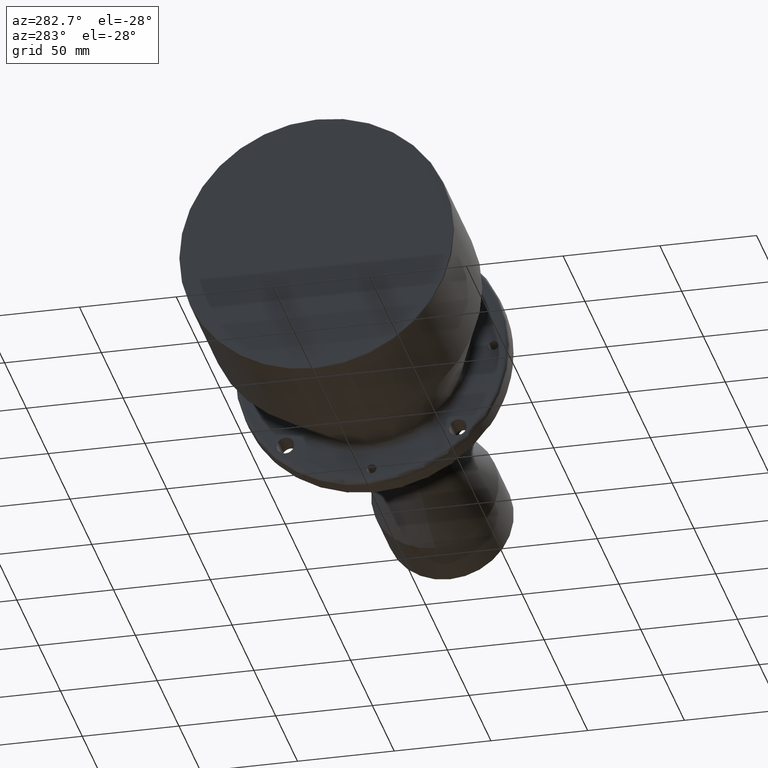
[diagram: clean part render]
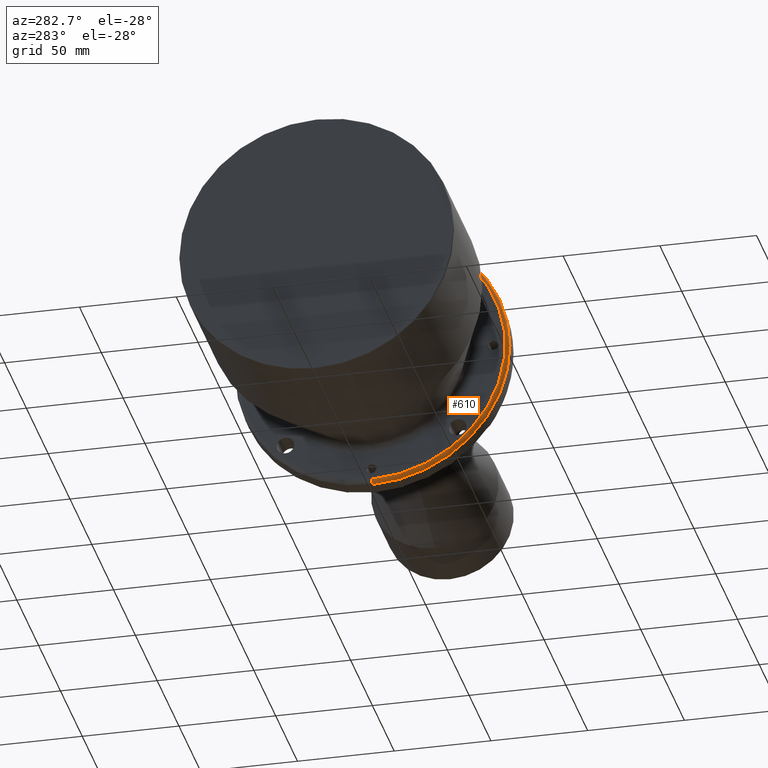
[diagram: same view with one face highlighted and labeled with its STEP entity id]
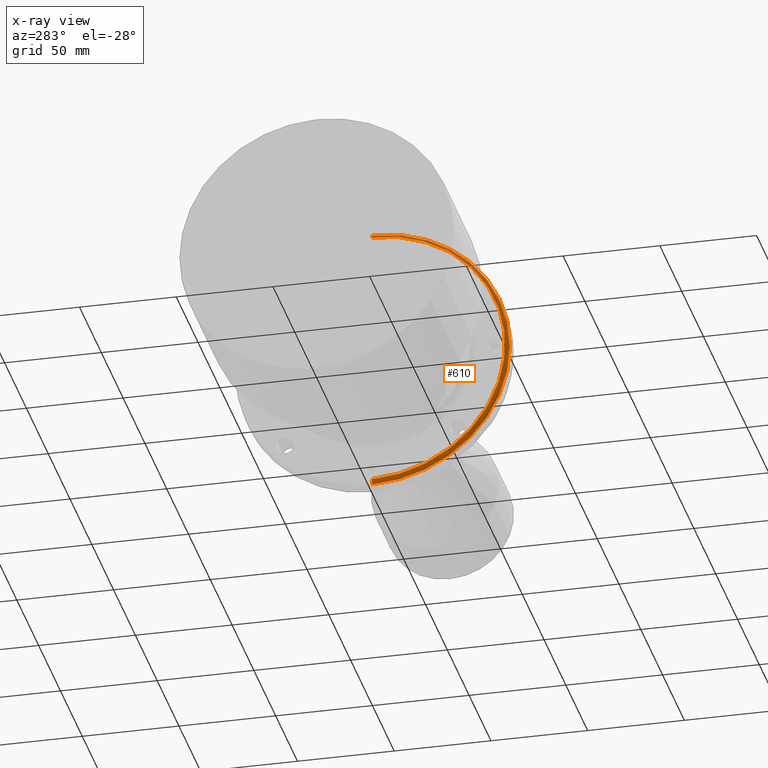
[diagram: x-ray of the same camera — body ghosted, the highlighted face saturated]
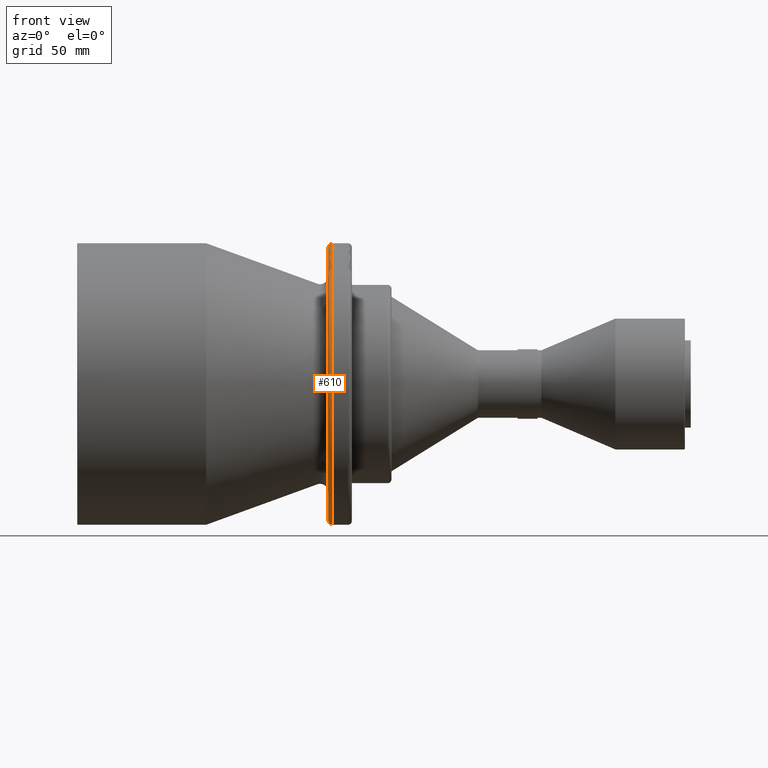
[diagram: same view with one face highlighted and labeled with its STEP entity id]
A machine part, auxiliary view. The second image highlights one B-rep face of the part: STEP entity #610.
The next image is the same camera in x-ray: the body ghosted, the highlighted face saturated — about 17% of this face is hidden behind the body in this view.
A second angle (front view) of the same face is appended — the face is thin or edge-on in the first view.
In plain terms, the highlighted toroidal blend (fillet) surface has major radius 69 mm and minor (blend) radius 2 mm.
Its self-contained STEP definition (entity closure, byte-faithful):
#17 = VERTEX_POINT ( 'NONE', #39 ) ;
#39 = CARTESIAN_POINT ( 'NONE',  ( 128.5000000000000000, 0.0000000000000000000, 71.00000000000000000 ) ) ;
#69 = DIRECTION ( 'NONE',  ( 0.0000000000000000000, -1.224646799147357200E-016, 1.000000000000000000 ) ) ;
#74 = CARTESIAN_POINT ( 'NONE',  ( 126.5000000000000000, 0.0000000000000000000, 0.0000000000000000000 ) ) ;
#129 = CARTESIAN_POINT ( 'NONE',  ( 128.5000000000000000, 0.0000000000000000000, 0.0000000000000000000 ) ) ;
#216 = CARTESIAN_POINT ( 'NONE',  ( 128.5000000000000000, 8.450062914116734700E-015, -68.99999999999998600 ) ) ;
#224 = DIRECTION ( 'NONE',  ( 0.0000000000000000000, 0.0000000000000000000, 1.000000000000000000 ) ) ;
#248 = CARTESIAN_POINT ( 'NONE',  ( 128.5000000000000000, 0.0000000000000000000, 68.99999999999998600 ) ) ;
#253 = VERTEX_POINT ( 'NONE', #698 ) ;
#273 = ORIENTED_EDGE ( 'NONE', *, *, #723, .T. ) ;
#342 = ORIENTED_EDGE ( 'NONE', *, *, #1292, .F. ) ;
#380 = CARTESIAN_POINT ( 'NONE',  ( 128.5000000000000000, 0.0000000000000000000, 0.0000000000000000000 ) ) ;
#399 = DIRECTION ( 'NONE',  ( 0.0000000000000000000, 0.0000000000000000000, 1.000000000000000000 ) ) ;
#400 = AXIS2_PLACEMENT_3D ( 'NONE', #248, #931, #1249 ) ;
#482 = VERTEX_POINT ( 'NONE', #1352 ) ;
#494 = TOROIDAL_SURFACE ( 'NONE', #1282, 68.99999999999998600, 2.000000000000001800 ) ;
#504 = DIRECTION ( 'NONE',  ( 0.0000000000000000000, 0.0000000000000000000, 1.000000000000000000 ) ) ;
#530 = AXIS2_PLACEMENT_3D ( 'NONE', #74, #1368, #224 ) ;
#610 = ADVANCED_FACE ( 'NONE', ( #1110 ), #494, .T. ) ;
#673 = EDGE_CURVE ( 'NONE', #17, #853, #1501, .T. ) ;
#698 = CARTESIAN_POINT ( 'NONE',  ( 128.5000000000000000, 8.694992273946206600E-015, -71.00000000000000000 ) ) ;
#723 = EDGE_CURVE ( 'NONE', #253, #17, #1251, .T. ) ;
#853 = VERTEX_POINT ( 'NONE', #1448 ) ;
#931 = DIRECTION ( 'NONE',  ( 0.0000000000000000000, -1.000000000000000000, 0.0000000000000000000 ) ) ;
#988 = AXIS2_PLACEMENT_3D ( 'NONE', #129, #1692, #399 ) ;
#1110 = FACE_OUTER_BOUND ( 'NONE', #1602, .T. ) ;
#1249 = DIRECTION ( 'NONE',  ( 0.0000000000000000000, 0.0000000000000000000, -1.000000000000000000 ) ) ;
#1251 = CIRCLE ( 'NONE', #988, 71.00000000000000000 ) ;
#1282 = AXIS2_PLACEMENT_3D ( 'NONE', #380, #1798, #504 ) ;
#1292 = EDGE_CURVE ( 'NONE', #253, #482, #1826, .T. ) ;
#1352 = CARTESIAN_POINT ( 'NONE',  ( 126.5000000000000000, 8.572527594031469800E-015, -68.99999999999997200 ) ) ;
#1368 = DIRECTION ( 'NONE',  ( -1.000000000000000000, -0.0000000000000000000, -0.0000000000000000000 ) ) ;
#1371 = EDGE_CURVE ( 'NONE', #482, #853, #1630, .T. ) ;
#1431 = AXIS2_PLACEMENT_3D ( 'NONE', #216, #1785, #69 ) ;
#1448 = CARTESIAN_POINT ( 'NONE',  ( 126.5000000000000000, 0.0000000000000000000, 68.99999999999997200 ) ) ;
#1501 = CIRCLE ( 'NONE', #400, 2.000000000000001800 ) ;
#1602 = EDGE_LOOP ( 'NONE', ( #342, #273, #1611, #1720 ) ) ;
#1611 = ORIENTED_EDGE ( 'NONE', *, *, #673, .T. ) ;
#1630 = CIRCLE ( 'NONE', #530, 68.99999999999997200 ) ;
#1692 = DIRECTION ( 'NONE',  ( -1.000000000000000000, -0.0000000000000000000, -0.0000000000000000000 ) ) ;
#1720 = ORIENTED_EDGE ( 'NONE', *, *, #1371, .F. ) ;
#1785 = DIRECTION ( 'NONE',  ( -0.0000000000000000000, 1.000000000000000000, 1.224646799147353200E-016 ) ) ;
#1798 = DIRECTION ( 'NONE',  ( -1.000000000000000000, -0.0000000000000000000, -0.0000000000000000000 ) ) ;
#1826 = CIRCLE ( 'NONE', #1431, 2.000000000000001800 ) ;